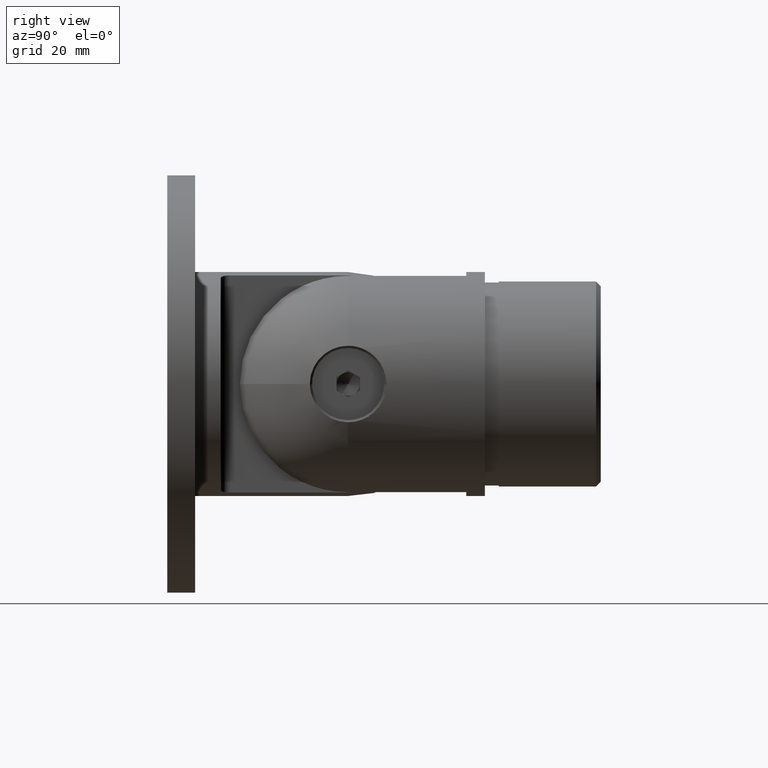
[diagram: clean part render]
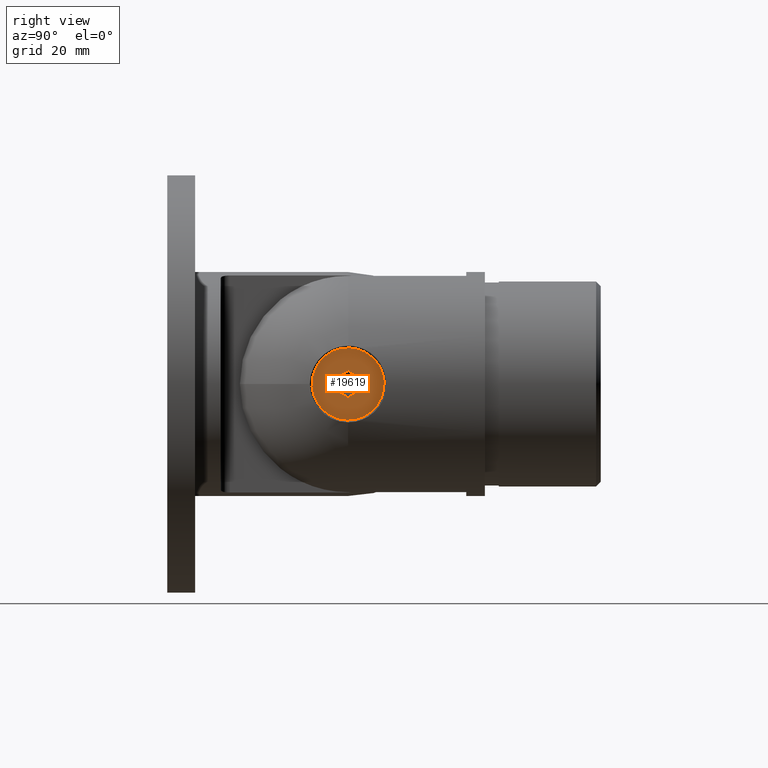
[diagram: same view with one face highlighted and labeled with its STEP entity id]
A machine part, right view. The second image highlights one B-rep face of the part: STEP entity #19619.
In plain terms, the highlighted planar face has unit normal (1, 0, 0).
Its self-contained STEP definition (entity closure, byte-faithful):
#71 = ORIENTED_EDGE ( 'NONE', *, *, #17594, .T. ) ;
#317 = DIRECTION ( 'NONE',  ( 0.000000000000000000, -1.000000000000000000, 0.000000000000000000 ) ) ;
#476 = DIRECTION ( 'NONE',  ( -1.000000000000000000, -0.000000000000000000, -0.000000000000000000 ) ) ;
#820 = LINE ( 'NONE', #8702, #9304 ) ;
#840 = VERTEX_POINT ( 'NONE', #18839 ) ;
#975 = DIRECTION ( 'NONE',  ( -0.000000000000000000, -0.4999999999999998335, -0.8660254037844387076 ) ) ;
#1421 = CARTESIAN_POINT ( 'NONE',  ( 0.000000000000000000, 1.449149175665961575, -2.509999999999999787 ) ) ;
#1747 = ORIENTED_EDGE ( 'NONE', *, *, #1804, .T. ) ;
#1804 = EDGE_CURVE ( 'NONE', #20599, #840, #4986, .T. ) ;
#2055 = EDGE_LOOP ( 'NONE', ( #2516, #16887, #6549, #19870, #71, #14859 ) ) ;
#2396 = EDGE_CURVE ( 'NONE', #5554, #8854, #23428, .T. ) ;
#2516 = ORIENTED_EDGE ( 'NONE', *, *, #11623, .T. ) ;
#2753 = FACE_OUTER_BOUND ( 'NONE', #3073, .T. ) ;
#3073 = EDGE_LOOP ( 'NONE', ( #1747, #10808 ) ) ;
#4000 = CARTESIAN_POINT ( 'NONE',  ( 0.000000000000000000, 0.000000000000000000, 0.000000000000000000 ) ) ;
#4903 = LINE ( 'NONE', #15315, #14300 ) ;
#4986 = CIRCLE ( 'NONE', #14347, 7.785000000000000142 ) ;
#5554 = VERTEX_POINT ( 'NONE', #8451 ) ;
#5972 = VECTOR ( 'NONE', #14536, 1000.000000000000114 ) ;
#6013 = CARTESIAN_POINT ( 'NONE',  ( 0.000000000000000000, 2.898298351331921818, -3.233603273357850147E-17 ) ) ;
#6277 = CARTESIAN_POINT ( 'NONE',  ( 0.000000000000000000, 1.449149175665961575, -2.509999999999999787 ) ) ;
#6295 = LINE ( 'NONE', #24317, #5972 ) ;
#6549 = ORIENTED_EDGE ( 'NONE', *, *, #7983, .T. ) ;
#7983 = EDGE_CURVE ( 'NONE', #18686, #10679, #23069, .T. ) ;
#8451 = CARTESIAN_POINT ( 'NONE',  ( 0.000000000000000000, 1.449149175665961575, 2.509999999999999787 ) ) ;
#8702 = CARTESIAN_POINT ( 'NONE',  ( 0.000000000000000000, -1.449149175665959133, 2.509999999999999787 ) ) ;
#8815 = PLANE ( 'NONE',  #23974 ) ;
#8854 = VERTEX_POINT ( 'NONE', #12138 ) ;
#9304 = VECTOR ( 'NONE', #975, 1000.000000000000000 ) ;
#10190 = DIRECTION ( 'NONE',  ( -1.000000000000000000, -0.000000000000000000, -0.000000000000000000 ) ) ;
#10679 = VERTEX_POINT ( 'NONE', #6277 ) ;
#10808 = ORIENTED_EDGE ( 'NONE', *, *, #24614, .T. ) ;
#11435 = LINE ( 'NONE', #1421, #12349 ) ;
#11623 = EDGE_CURVE ( 'NONE', #8854, #16682, #820, .T. ) ;
#11744 = EDGE_CURVE ( 'NONE', #16682, #18686, #6295, .T. ) ;
#12072 = CARTESIAN_POINT ( 'NONE',  ( 0.000000000000000000, 0.000000000000000000, 7.785000000000000142 ) ) ;
#12091 = CARTESIAN_POINT ( 'NONE',  ( 0.000000000000000000, 0.000000000000000000, 0.000000000000000000 ) ) ;
#12138 = CARTESIAN_POINT ( 'NONE',  ( 0.000000000000000000, -1.449149175665959133, 2.509999999999999787 ) ) ;
#12349 = VECTOR ( 'NONE', #15143, 1000.000000000000114 ) ;
#12782 = VECTOR ( 'NONE', #22029, 1000.000000000000000 ) ;
#12787 = VERTEX_POINT ( 'NONE', #6013 ) ;
#14027 = DIRECTION ( 'NONE',  ( 0.000000000000000000, 0.000000000000000000, 1.000000000000000000 ) ) ;
#14164 = DIRECTION ( 'NONE',  ( 0.000000000000000000, 0.000000000000000000, 1.000000000000000000 ) ) ;
#14300 = VECTOR ( 'NONE', #19700, 1000.000000000000114 ) ;
#14347 = AXIS2_PLACEMENT_3D ( 'NONE', #4000, #10190, #14164 ) ;
#14536 = DIRECTION ( 'NONE',  ( 0.000000000000000000, 0.4999999999999999445, -0.8660254037844385966 ) ) ;
#14859 = ORIENTED_EDGE ( 'NONE', *, *, #2396, .T. ) ;
#15143 = DIRECTION ( 'NONE',  ( 0.000000000000000000, 0.4999999999999999445, 0.8660254037844385966 ) ) ;
#15315 = CARTESIAN_POINT ( 'NONE',  ( 0.000000000000000000, 2.898298351331921818, -3.233603273357850147E-17 ) ) ;
#15581 = CARTESIAN_POINT ( 'NONE',  ( 0.000000000000000000, 1.449149175665961575, 2.509999999999999787 ) ) ;
#16190 = CARTESIAN_POINT ( 'NONE',  ( -0.000000000000000000, -1.449149175665958689, -2.509999999999999787 ) ) ;
#16340 = FACE_BOUND ( 'NONE', #2055, .T. ) ;
#16363 = DIRECTION ( 'NONE',  ( -1.000000000000000000, 0.000000000000000000, -0.000000000000000000 ) ) ;
#16443 = DIRECTION ( 'NONE',  ( -0.000000000000000000, 0.000000000000000000, 1.000000000000000000 ) ) ;
#16682 = VERTEX_POINT ( 'NONE', #21275 ) ;
#16887 = ORIENTED_EDGE ( 'NONE', *, *, #11744, .T. ) ;
#17356 = VECTOR ( 'NONE', #317, 1000.000000000000000 ) ;
#17594 = EDGE_CURVE ( 'NONE', #12787, #5554, #4903, .T. ) ;
#18686 = VERTEX_POINT ( 'NONE', #22920 ) ;
#18839 = CARTESIAN_POINT ( 'NONE',  ( 0.000000000000000000, 9.533875331362144931E-16, -7.785000000000000142 ) ) ;
#19619 = ADVANCED_FACE ( 'NONE', ( #2753, #16340 ), #8815, .T. ) ;
#19700 = DIRECTION ( 'NONE',  ( 0.000000000000000000, -0.4999999999999999445, 0.8660254037844385966 ) ) ;
#19870 = ORIENTED_EDGE ( 'NONE', *, *, #22228, .T. ) ;
#20599 = VERTEX_POINT ( 'NONE', #12072 ) ;
#21039 = CIRCLE ( 'NONE', #24623, 7.785000000000000142 ) ;
#21275 = CARTESIAN_POINT ( 'NONE',  ( 0.000000000000000000, -2.898298351331919154, 0.000000000000000000 ) ) ;
#22029 = DIRECTION ( 'NONE',  ( 0.000000000000000000, 1.000000000000000000, 0.000000000000000000 ) ) ;
#22228 = EDGE_CURVE ( 'NONE', #10679, #12787, #11435, .T. ) ;
#22920 = CARTESIAN_POINT ( 'NONE',  ( -0.000000000000000000, -1.449149175665958689, -2.509999999999999787 ) ) ;
#23069 = LINE ( 'NONE', #16190, #12782 ) ;
#23428 = LINE ( 'NONE', #15581, #17356 ) ;
#23974 = AXIS2_PLACEMENT_3D ( 'NONE', #24058, #16363, #16443 ) ;
#24058 = CARTESIAN_POINT ( 'NONE',  ( 0.000000000000000000, 0.000000000000000000, 0.000000000000000000 ) ) ;
#24317 = CARTESIAN_POINT ( 'NONE',  ( -0.000000000000000000, -2.898298351331919154, -2.596146566829020447E-17 ) ) ;
#24614 = EDGE_CURVE ( 'NONE', #840, #20599, #21039, .T. ) ;
#24623 = AXIS2_PLACEMENT_3D ( 'NONE', #12091, #476, #14027 ) ;